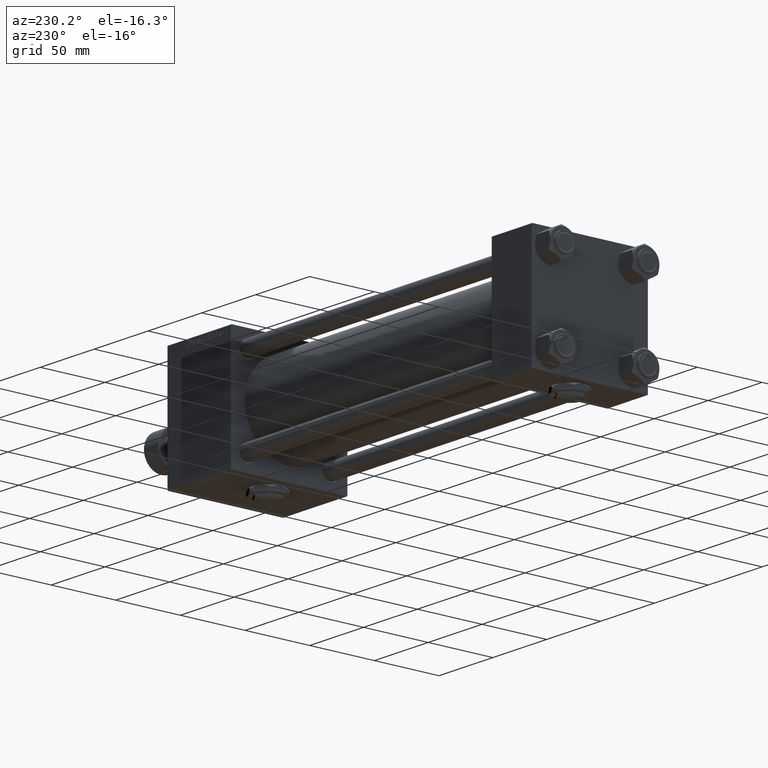
[diagram: clean part render]
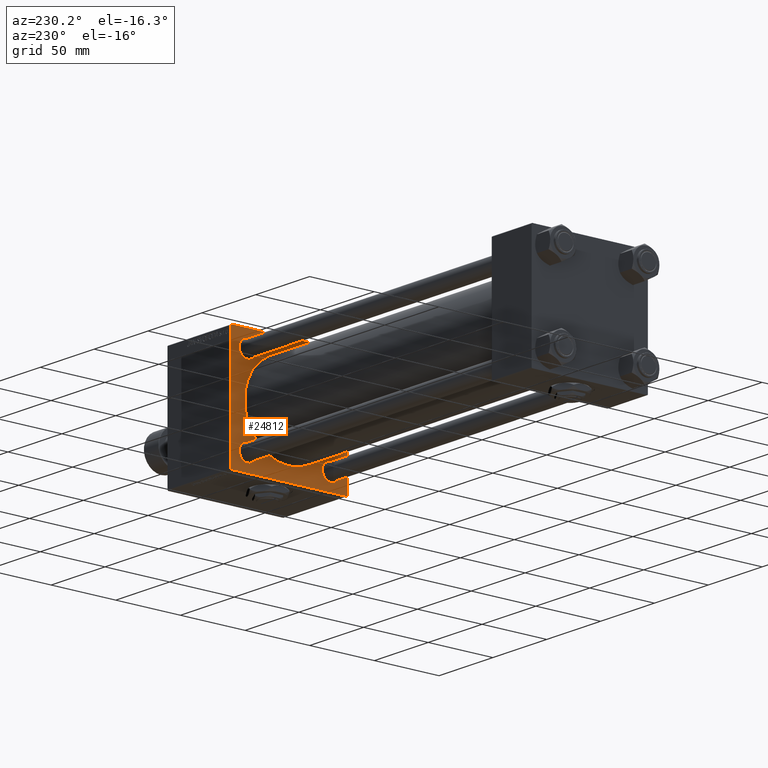
[diagram: same view with one face highlighted and labeled with its STEP entity id]
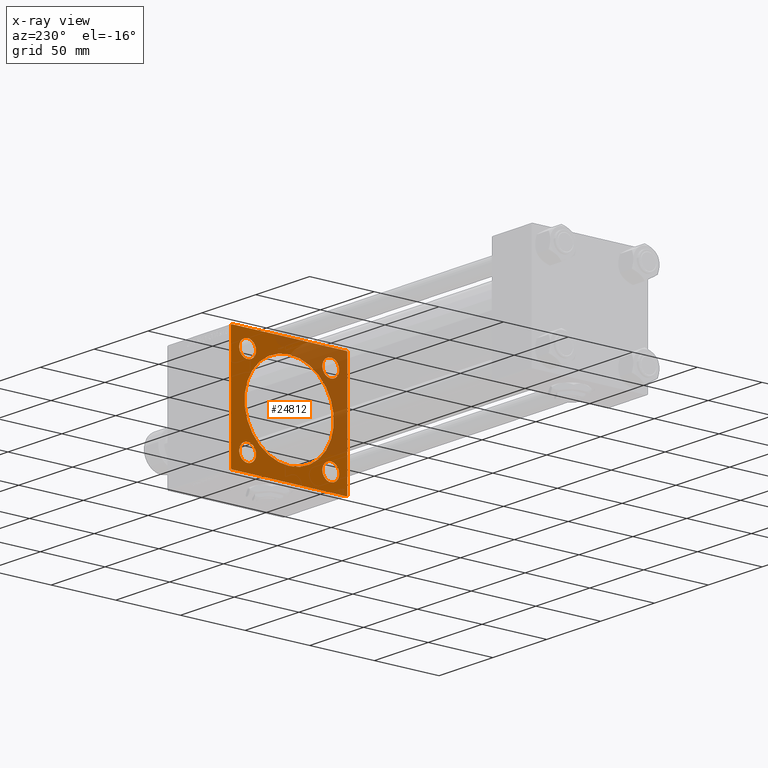
[diagram: x-ray of the same camera — body ghosted, the highlighted face saturated]
A machine part, auxiliary view. The second image highlights one B-rep face of the part: STEP entity #24812.
The next image is the same camera in x-ray: the body ghosted, the highlighted face saturated — about 32% of this face is hidden behind the body in this view.
In plain terms, the highlighted planar face has unit normal (-1, 0, 0).
Its self-contained STEP definition (entity closure, byte-faithful):
#252 = AXIS2_PLACEMENT_3D ( 'NONE', #5629, #2412, #17647 ) ;
#921 = EDGE_LOOP ( 'NONE', ( #9282, #3959 ) ) ;
#1039 = VECTOR ( 'NONE', #33780, 1000.000000000000114 ) ;
#1085 = CIRCLE ( 'NONE', #24131, 6.500000000000005329 ) ;
#1352 = CARTESIAN_POINT ( 'NONE',  ( 278.9999999999999432, -2.602085213965210642E-15, 0.000000000000000000 ) ) ;
#1727 = EDGE_CURVE ( 'NONE', #33221, #8916, #28842, .T. ) ;
#2180 = DIRECTION ( 'NONE',  ( -1.000000000000000000, 0.000000000000000000, -0.000000000000000000 ) ) ;
#2412 = DIRECTION ( 'NONE',  ( 1.000000000000000000, 0.000000000000000000, 0.000000000000000000 ) ) ;
#2607 = CARTESIAN_POINT ( 'NONE',  ( 278.9999999999999432, -44.75000000000249401, 44.74999999999752021 ) ) ;
#3051 = ORIENTED_EDGE ( 'NONE', *, *, #24715, .T. ) ;
#3181 = AXIS2_PLACEMENT_3D ( 'NONE', #22480, #2180, #14436 ) ;
#3482 = CARTESIAN_POINT ( 'NONE',  ( 278.9999999999999432, -45.00000000000000000, 44.49999999999998579 ) ) ;
#3680 = CIRCLE ( 'NONE', #18151, 6.500000000000005329 ) ;
#3959 = ORIENTED_EDGE ( 'NONE', *, *, #15720, .T. ) ;
#4133 = CARTESIAN_POINT ( 'NONE',  ( 278.9999999999999432, 32.14999999999999147, 38.65000000000001279 ) ) ;
#4166 = CARTESIAN_POINT ( 'NONE',  ( 278.9999999999999432, -32.14999999999997726, -32.15000000000001279 ) ) ;
#4329 = DIRECTION ( 'NONE',  ( 1.000000000000000000, 0.000000000000000000, 0.000000000000000000 ) ) ;
#4734 = ORIENTED_EDGE ( 'NONE', *, *, #25243, .T. ) ;
#5051 = AXIS2_PLACEMENT_3D ( 'NONE', #26100, #30358, #10590 ) ;
#5360 = DIRECTION ( 'NONE',  ( 0.000000000000000000, 0.000000000000000000, 1.000000000000000000 ) ) ;
#5495 = LINE ( 'NONE', #13222, #26197 ) ;
#5537 = EDGE_CURVE ( 'NONE', #34798, #47410, #45128, .T. ) ;
#5629 = CARTESIAN_POINT ( 'NONE',  ( 278.9999999999999432, -32.14999999999997726, 32.15000000000001279 ) ) ;
#5908 = CARTESIAN_POINT ( 'NONE',  ( 278.9999999999999432, -32.14999999999997726, 32.15000000000001279 ) ) ;
#6200 = DIRECTION ( 'NONE',  ( 0.000000000000000000, -1.000000000000000000, 0.000000000000000000 ) ) ;
#6649 = CARTESIAN_POINT ( 'NONE',  ( 278.9999999999999432, 1.622946243093158675E-15, -34.50000000000000000 ) ) ;
#7286 = ORIENTED_EDGE ( 'NONE', *, *, #15051, .T. ) ;
#7573 = VECTOR ( 'NONE', #39577, 1000.000000000000000 ) ;
#7684 = VERTEX_POINT ( 'NONE', #12905 ) ;
#7807 = EDGE_CURVE ( 'NONE', #24048, #7684, #36098, .T. ) ;
#7944 = LINE ( 'NONE', #45534, #40138 ) ;
#8088 = ORIENTED_EDGE ( 'NONE', *, *, #16396, .T. ) ;
#8916 = VERTEX_POINT ( 'NONE', #26540 ) ;
#9282 = ORIENTED_EDGE ( 'NONE', *, *, #5537, .T. ) ;
#9335 = AXIS2_PLACEMENT_3D ( 'NONE', #17150, #45675, #33696 ) ;
#9649 = FACE_BOUND ( 'NONE', #921, .T. ) ;
#10201 = VECTOR ( 'NONE', #6200, 1000.000000000000000 ) ;
#10590 = DIRECTION ( 'NONE',  ( 0.000000000000000000, 0.000000000000000000, 1.000000000000000000 ) ) ;
#10697 = FACE_BOUND ( 'NONE', #39608, .T. ) ;
#11197 = CARTESIAN_POINT ( 'NONE',  ( 278.9999999999999432, -2.602085213965210642E-15, 34.50000000000000000 ) ) ;
#11274 = DIRECTION ( 'NONE',  ( 0.000000000000000000, 0.000000000000000000, -1.000000000000000000 ) ) ;
#11732 = VECTOR ( 'NONE', #26670, 999.9999999999998863 ) ;
#11784 = CARTESIAN_POINT ( 'NONE',  ( 278.9999999999999432, 45.00000000000001421, 45.00000000000000000 ) ) ;
#12098 = ORIENTED_EDGE ( 'NONE', *, *, #7807, .F. ) ;
#12557 = VERTEX_POINT ( 'NONE', #29761 ) ;
#12905 = CARTESIAN_POINT ( 'NONE',  ( 278.9999999999999432, -44.50000000000002842, 44.99999999999998579 ) ) ;
#12971 = VECTOR ( 'NONE', #13221, 1000.000000000000000 ) ;
#12983 = DIRECTION ( 'NONE',  ( 0.000000000000000000, 0.000000000000000000, -1.000000000000000000 ) ) ;
#13045 = ORIENTED_EDGE ( 'NONE', *, *, #30351, .T. ) ;
#13175 = EDGE_LOOP ( 'NONE', ( #13045, #20161 ) ) ;
#13221 = DIRECTION ( 'NONE',  ( 0.000000000000000000, 7.709882115452478166E-17, -1.000000000000000000 ) ) ;
#13222 = CARTESIAN_POINT ( 'NONE',  ( 278.9999999999999432, 44.75000000000000000, -44.75000000000000000 ) ) ;
#13354 = CARTESIAN_POINT ( 'NONE',  ( 278.9999999999999432, 32.14999999999999147, 32.15000000000000568 ) ) ;
#13602 = CIRCLE ( 'NONE', #9335, 6.500000000000005329 ) ;
#13700 = VERTEX_POINT ( 'NONE', #20138 ) ;
#13840 = CIRCLE ( 'NONE', #43694, 34.50000000000000000 ) ;
#14436 = DIRECTION ( 'NONE',  ( -0.000000000000000000, 0.000000000000000000, 1.000000000000000000 ) ) ;
#14928 = EDGE_CURVE ( 'NONE', #17656, #7684, #51145, .T. ) ;
#15035 = EDGE_CURVE ( 'NONE', #17656, #12557, #46034, .T. ) ;
#15051 = EDGE_CURVE ( 'NONE', #24048, #15818, #49508, .T. ) ;
#15209 = CARTESIAN_POINT ( 'NONE',  ( 278.9999999999999432, 45.00000000000001421, 44.49999999999994316 ) ) ;
#15720 = EDGE_CURVE ( 'NONE', #47410, #34798, #17287, .T. ) ;
#15790 = DIRECTION ( 'NONE',  ( 0.000000000000000000, 0.000000000000000000, 1.000000000000000000 ) ) ;
#15818 = VERTEX_POINT ( 'NONE', #15209 ) ;
#15950 = EDGE_CURVE ( 'NONE', #41433, #13700, #1085, .T. ) ;
#16253 = CARTESIAN_POINT ( 'NONE',  ( 278.9999999999999432, 45.00000000000001421, -44.49999999999997158 ) ) ;
#16396 = EDGE_CURVE ( 'NONE', #45151, #51826, #13840, .T. ) ;
#16579 = CARTESIAN_POINT ( 'NONE',  ( 278.9999999999999432, -32.14999999999997726, 38.65000000000002700 ) ) ;
#16794 = EDGE_CURVE ( 'NONE', #25903, #30853, #33523, .T. ) ;
#17150 = CARTESIAN_POINT ( 'NONE',  ( 278.9999999999999432, 32.14999999999999147, -32.15000000000000568 ) ) ;
#17245 = CARTESIAN_POINT ( 'NONE',  ( 278.9999999999999432, 44.74999999999997158, 44.74999999999997158 ) ) ;
#17287 = CIRCLE ( 'NONE', #18977, 6.499999999999999112 ) ;
#17647 = DIRECTION ( 'NONE',  ( 0.000000000000000000, 0.000000000000000000, 1.000000000000000000 ) ) ;
#17656 = VERTEX_POINT ( 'NONE', #3482 ) ;
#18151 = AXIS2_PLACEMENT_3D ( 'NONE', #52575, #23799, #15790 ) ;
#18400 = LINE ( 'NONE', #34664, #11732 ) ;
#18898 = DIRECTION ( 'NONE',  ( -0.000000000000000000, 0.7071067811865081598, 0.7071067811865868746 ) ) ;
#18977 = AXIS2_PLACEMENT_3D ( 'NONE', #13354, #21918, #5360 ) ;
#19620 = ORIENTED_EDGE ( 'NONE', *, *, #36217, .T. ) ;
#20138 = CARTESIAN_POINT ( 'NONE',  ( 278.9999999999999432, 32.14999999999999147, -25.64999999999999858 ) ) ;
#20161 = ORIENTED_EDGE ( 'NONE', *, *, #15950, .T. ) ;
#21918 = DIRECTION ( 'NONE',  ( 1.000000000000000000, 0.000000000000000000, 0.000000000000000000 ) ) ;
#22344 = VERTEX_POINT ( 'NONE', #30472 ) ;
#22480 = CARTESIAN_POINT ( 'NONE',  ( 278.9999999999999432, 0.000000000000000000, 0.000000000000000000 ) ) ;
#22510 = CIRCLE ( 'NONE', #52285, 6.500000000000005329 ) ;
#23009 = EDGE_LOOP ( 'NONE', ( #48224, #4734, #50766, #40692, #12098, #7286, #19620, #3051 ) ) ;
#23799 = DIRECTION ( 'NONE',  ( 1.000000000000000000, 0.000000000000000000, 0.000000000000000000 ) ) ;
#24048 = VERTEX_POINT ( 'NONE', #40476 ) ;
#24131 = AXIS2_PLACEMENT_3D ( 'NONE', #29075, #40558, #36824 ) ;
#24715 = EDGE_CURVE ( 'NONE', #40657, #44700, #5495, .T. ) ;
#24812 = ADVANCED_FACE ( 'NONE', ( #25952, #9649, #34475, #10697, #31008, #46461 ), #46710, .T. ) ;
#25243 = EDGE_CURVE ( 'NONE', #22344, #12557, #18400, .T. ) ;
#25521 = DIRECTION ( 'NONE',  ( -0.000000000000000000, -0.7071067811865474617, -0.7071067811865474617 ) ) ;
#25903 = VERTEX_POINT ( 'NONE', #16579 ) ;
#25952 = FACE_BOUND ( 'NONE', #36105, .T. ) ;
#26100 = CARTESIAN_POINT ( 'NONE',  ( 278.9999999999999432, 32.14999999999999147, 32.15000000000000568 ) ) ;
#26197 = VECTOR ( 'NONE', #25521, 1000.000000000000114 ) ;
#26540 = CARTESIAN_POINT ( 'NONE',  ( 278.9999999999999432, -32.14999999999997726, -38.65000000000001990 ) ) ;
#26670 = DIRECTION ( 'NONE',  ( 0.000000000000000000, -0.7071067811865525687, 0.7071067811865425767 ) ) ;
#26760 = LINE ( 'NONE', #42757, #10201 ) ;
#27412 = DIRECTION ( 'NONE',  ( 0.000000000000000000, 0.000000000000000000, 1.000000000000000000 ) ) ;
#27492 = CARTESIAN_POINT ( 'NONE',  ( 278.9999999999999432, 32.14999999999999147, -38.65000000000001279 ) ) ;
#28422 = ORIENTED_EDGE ( 'NONE', *, *, #44869, .T. ) ;
#28515 = ORIENTED_EDGE ( 'NONE', *, *, #16794, .T. ) ;
#28842 = CIRCLE ( 'NONE', #33940, 6.500000000000005329 ) ;
#29075 = CARTESIAN_POINT ( 'NONE',  ( 278.9999999999999432, 32.14999999999999147, -32.15000000000000568 ) ) ;
#29325 = CARTESIAN_POINT ( 'NONE',  ( 278.9999999999999432, -32.14999999999997726, 25.65000000000000213 ) ) ;
#29761 = CARTESIAN_POINT ( 'NONE',  ( 278.9999999999999432, -44.99999999999999289, -44.49999999999997158 ) ) ;
#29922 = DIRECTION ( 'NONE',  ( 0.000000000000000000, 0.000000000000000000, -1.000000000000000000 ) ) ;
#30013 = ORIENTED_EDGE ( 'NONE', *, *, #33832, .T. ) ;
#30351 = EDGE_CURVE ( 'NONE', #13700, #41433, #13602, .T. ) ;
#30358 = DIRECTION ( 'NONE',  ( 1.000000000000000000, 0.000000000000000000, 0.000000000000000000 ) ) ;
#30472 = CARTESIAN_POINT ( 'NONE',  ( 278.9999999999999432, -44.49999999999995737, -45.00000000000000000 ) ) ;
#30853 = VERTEX_POINT ( 'NONE', #29325 ) ;
#31008 = FACE_BOUND ( 'NONE', #47047, .T. ) ;
#31786 = CARTESIAN_POINT ( 'NONE',  ( 278.9999999999999432, 32.14999999999999147, 25.65000000000000213 ) ) ;
#32097 = CARTESIAN_POINT ( 'NONE',  ( 278.9999999999999432, -2.602085213965210642E-15, 0.000000000000000000 ) ) ;
#32578 = VECTOR ( 'NONE', #18898, 1000.000000000000000 ) ;
#33221 = VERTEX_POINT ( 'NONE', #39808 ) ;
#33512 = ORIENTED_EDGE ( 'NONE', *, *, #1727, .T. ) ;
#33523 = CIRCLE ( 'NONE', #252, 6.500000000000005329 ) ;
#33526 = CARTESIAN_POINT ( 'NONE',  ( 278.9999999999999432, -45.00000000000000000, 44.99999999999998579 ) ) ;
#33696 = DIRECTION ( 'NONE',  ( 0.000000000000000000, 0.000000000000000000, 1.000000000000000000 ) ) ;
#33780 = DIRECTION ( 'NONE',  ( 0.000000000000000000, 0.7071067811865474617, -0.7071067811865474617 ) ) ;
#33832 = EDGE_CURVE ( 'NONE', #51826, #45151, #44311, .T. ) ;
#33940 = AXIS2_PLACEMENT_3D ( 'NONE', #4166, #43935, #27412 ) ;
#34209 = DIRECTION ( 'NONE',  ( 1.000000000000000000, 0.000000000000000000, 0.000000000000000000 ) ) ;
#34475 = FACE_BOUND ( 'NONE', #13175, .T. ) ;
#34664 = CARTESIAN_POINT ( 'NONE',  ( 278.9999999999999432, -44.74999999999968736, -44.75000000000031264 ) ) ;
#34798 = VERTEX_POINT ( 'NONE', #4133 ) ;
#35312 = DIRECTION ( 'NONE',  ( 1.000000000000000000, 0.000000000000000000, 0.000000000000000000 ) ) ;
#36098 = LINE ( 'NONE', #11784, #7573 ) ;
#36105 = EDGE_LOOP ( 'NONE', ( #28515, #47358 ) ) ;
#36217 = EDGE_CURVE ( 'NONE', #15818, #40657, #7944, .T. ) ;
#36824 = DIRECTION ( 'NONE',  ( 0.000000000000000000, 0.000000000000000000, 1.000000000000000000 ) ) ;
#39577 = DIRECTION ( 'NONE',  ( 0.000000000000000000, -1.000000000000000000, -1.541976423090495140E-16 ) ) ;
#39608 = EDGE_LOOP ( 'NONE', ( #33512, #28422 ) ) ;
#39808 = CARTESIAN_POINT ( 'NONE',  ( 278.9999999999999432, -32.14999999999997726, -25.65000000000000568 ) ) ;
#40138 = VECTOR ( 'NONE', #12983, 1000.000000000000000 ) ;
#40476 = CARTESIAN_POINT ( 'NONE',  ( 278.9999999999999432, 44.49999999999995737, 45.00000000000000000 ) ) ;
#40558 = DIRECTION ( 'NONE',  ( 1.000000000000000000, 0.000000000000000000, 0.000000000000000000 ) ) ;
#40657 = VERTEX_POINT ( 'NONE', #16253 ) ;
#40692 = ORIENTED_EDGE ( 'NONE', *, *, #14928, .T. ) ;
#41433 = VERTEX_POINT ( 'NONE', #27492 ) ;
#41964 = CARTESIAN_POINT ( 'NONE',  ( 278.9999999999999432, 44.50000000000001421, -45.00000000000000000 ) ) ;
#42594 = AXIS2_PLACEMENT_3D ( 'NONE', #1352, #4329, #29922 ) ;
#42757 = CARTESIAN_POINT ( 'NONE',  ( 278.9999999999999432, 45.00000000000001421, -45.00000000000000000 ) ) ;
#43694 = AXIS2_PLACEMENT_3D ( 'NONE', #32097, #35312, #11274 ) ;
#43935 = DIRECTION ( 'NONE',  ( 1.000000000000000000, 0.000000000000000000, 0.000000000000000000 ) ) ;
#44311 = CIRCLE ( 'NONE', #42594, 34.50000000000000000 ) ;
#44700 = VERTEX_POINT ( 'NONE', #41964 ) ;
#44869 = EDGE_CURVE ( 'NONE', #8916, #33221, #3680, .T. ) ;
#45128 = CIRCLE ( 'NONE', #5051, 6.499999999999999112 ) ;
#45151 = VERTEX_POINT ( 'NONE', #6649 ) ;
#45534 = CARTESIAN_POINT ( 'NONE',  ( 278.9999999999999432, 45.00000000000001421, 45.00000000000000000 ) ) ;
#45675 = DIRECTION ( 'NONE',  ( 1.000000000000000000, 0.000000000000000000, 0.000000000000000000 ) ) ;
#46034 = LINE ( 'NONE', #33526, #12971 ) ;
#46461 = FACE_OUTER_BOUND ( 'NONE', #23009, .T. ) ;
#46710 = PLANE ( 'NONE',  #3181 ) ;
#47047 = EDGE_LOOP ( 'NONE', ( #30013, #8088 ) ) ;
#47276 = EDGE_CURVE ( 'NONE', #30853, #25903, #22510, .T. ) ;
#47358 = ORIENTED_EDGE ( 'NONE', *, *, #47276, .T. ) ;
#47410 = VERTEX_POINT ( 'NONE', #31786 ) ;
#48224 = ORIENTED_EDGE ( 'NONE', *, *, #50755, .T. ) ;
#49508 = LINE ( 'NONE', #17245, #1039 ) ;
#50755 = EDGE_CURVE ( 'NONE', #44700, #22344, #26760, .T. ) ;
#50766 = ORIENTED_EDGE ( 'NONE', *, *, #15035, .F. ) ;
#50964 = DIRECTION ( 'NONE',  ( 0.000000000000000000, 0.000000000000000000, 1.000000000000000000 ) ) ;
#51145 = LINE ( 'NONE', #2607, #32578 ) ;
#51826 = VERTEX_POINT ( 'NONE', #11197 ) ;
#52285 = AXIS2_PLACEMENT_3D ( 'NONE', #5908, #34209, #50964 ) ;
#52575 = CARTESIAN_POINT ( 'NONE',  ( 278.9999999999999432, -32.14999999999997726, -32.15000000000001279 ) ) ;